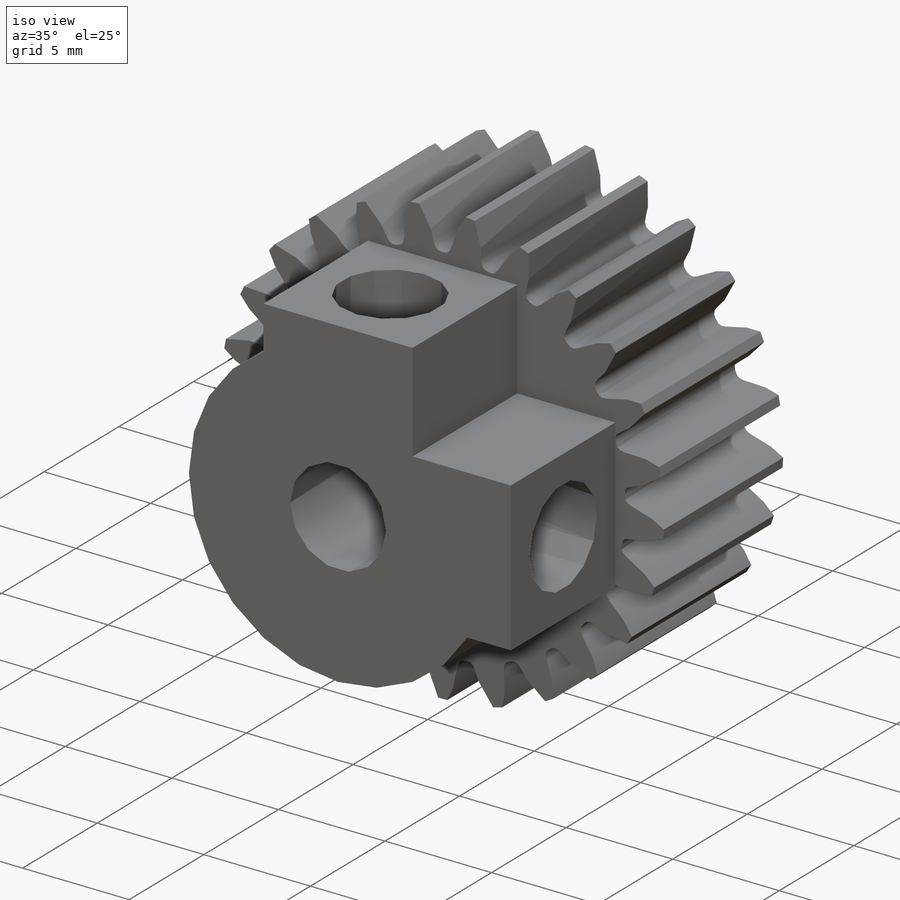
[diagram: iso view]
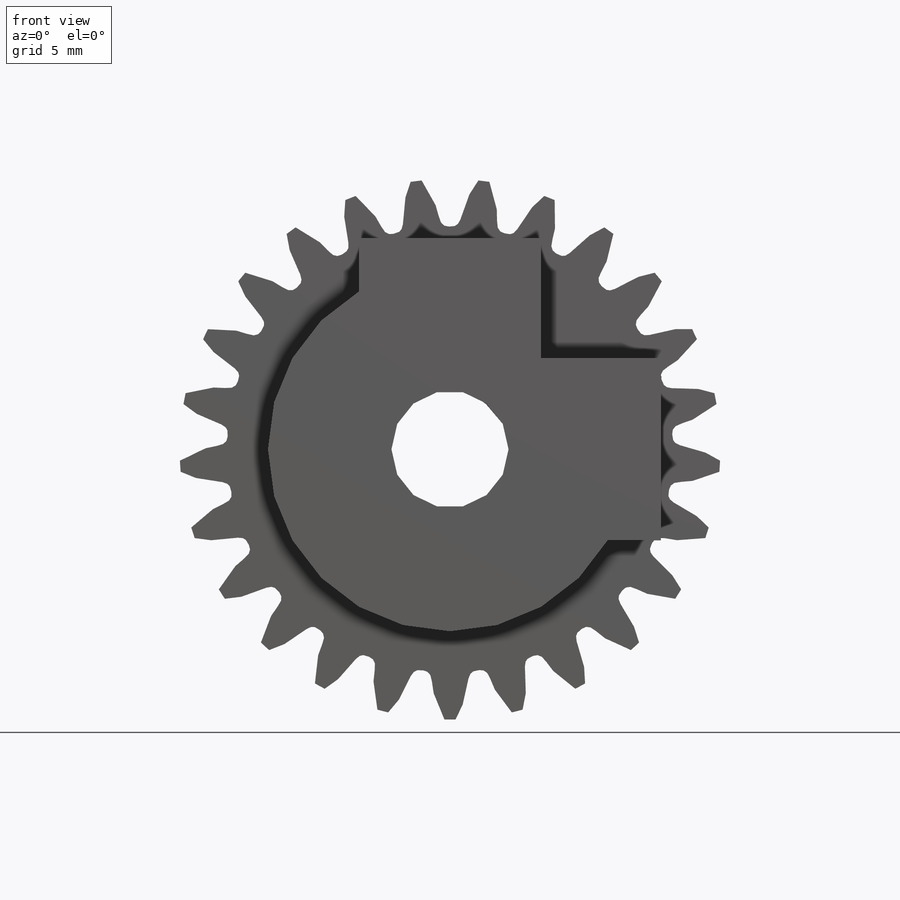
[diagram: front view]
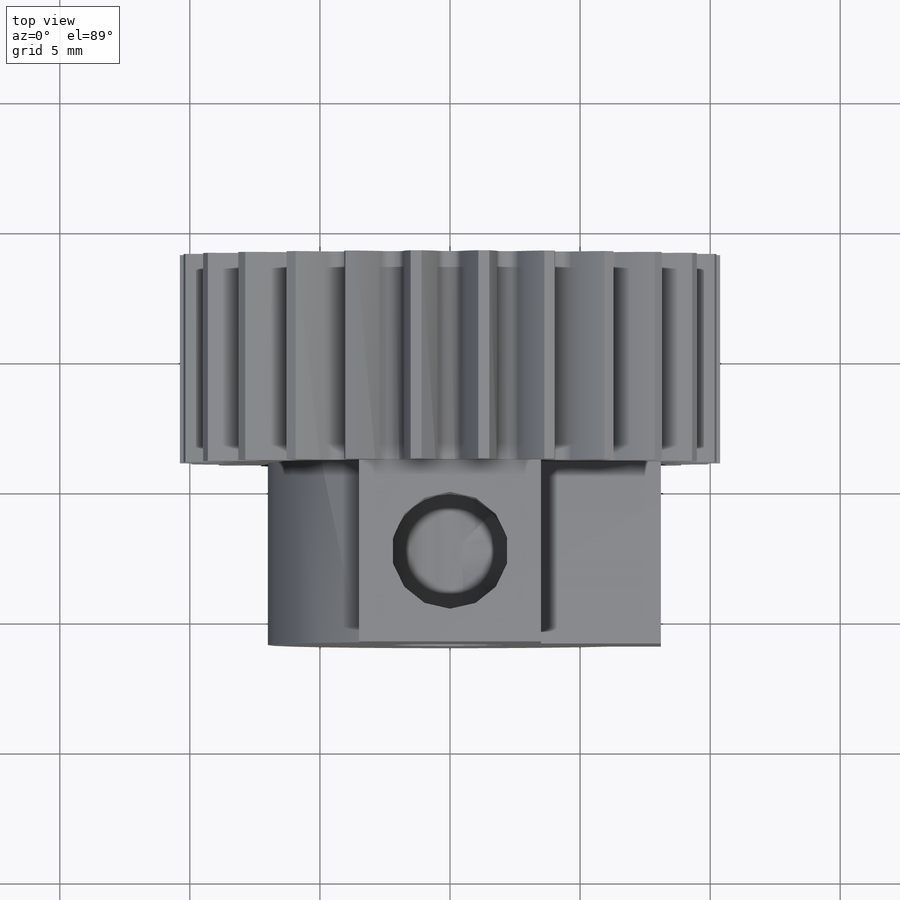
[diagram: top view]
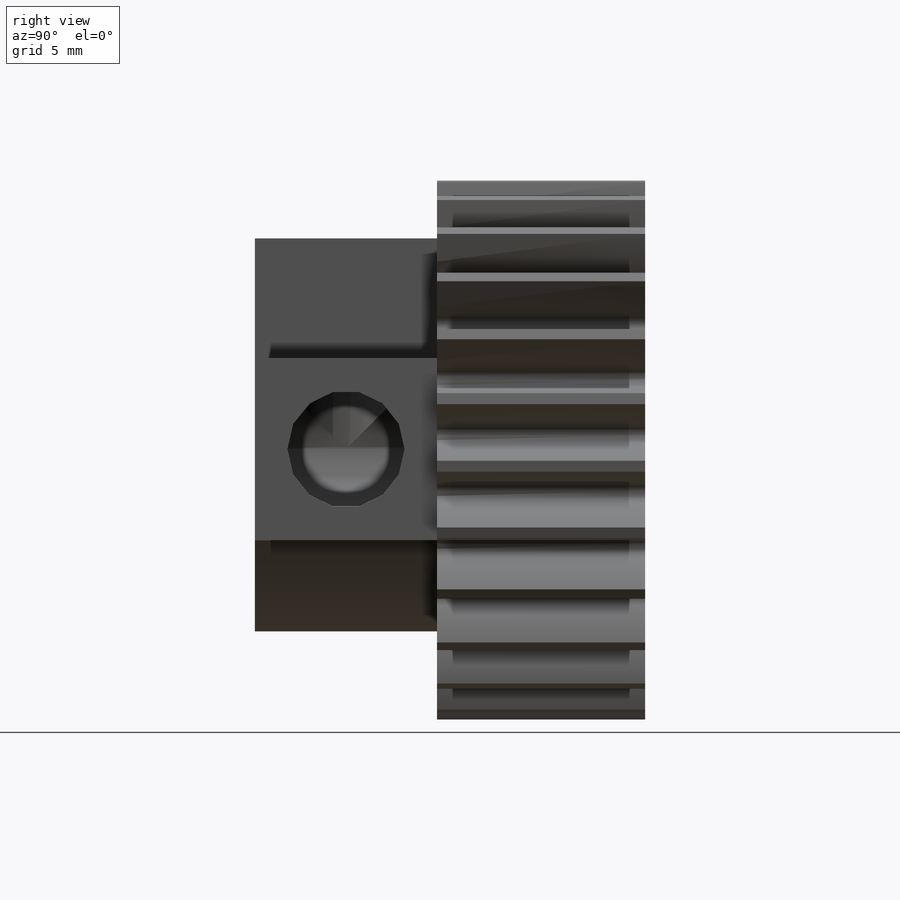
[diagram: right view]
SOLIDWORKS PART (.sldprt)
format: sldprt  version: not decoded by parser v0  size: 429,568 bytes
history: native  units: mm
features: sketch x6, cut_extrude x4, extrude x2, material x1, pattern_circular x1 (+13 scaffold rows collapsed)
feature tree (27):
  scaffold x13  (default folders/planes/origin — collapsed)
  material  "PLA Black"
  sketch  "Gear-BaseSketch"  dims[D1=~20.781818mm]
  extrude  "33.0 Diametral Pitch, 20.78mm P.D."  Depth=8mm
  sketch  "Tooth-Sketch; Backlash: 0.0000mm"
  cut_extrude  "Tooth-Cut, Fine Pitch Involute 20 deg"  Depth=10mm
  pattern_circular  "Tooth Pattern, 25 / 25"  Count=25 Angle=14.4deg
  sketch  "Sketch4"  dims[D1=4.5mm]
  cut_extrude  "Cut-Extrude2"  [1 undecoded]
  sketch  "Sketch6"  dims[c1.D1=7.0mm c1.D2=7.0mm c2.D1=7.0mm]
  extrude  "Boss-Extrude2"  Depth=7mm
  sketch  "Sketch10"  dims[D1=4.5mm]
  cut_extrude  "Cut-Extrude3"  Depth=8mm
  sketch  "Sketch11"  dims[D1=4.5mm]
  cut_extrude  "Cut-Extrude4"  Depth=8mm
decode coverage: 11 of 13 modeling features carry decoded parameters
note: ~ marks probable driven/reference dimensions
note: 1 parameter value undecoded
note: suppression state not decoded; provenance and decode notes live in map.json
